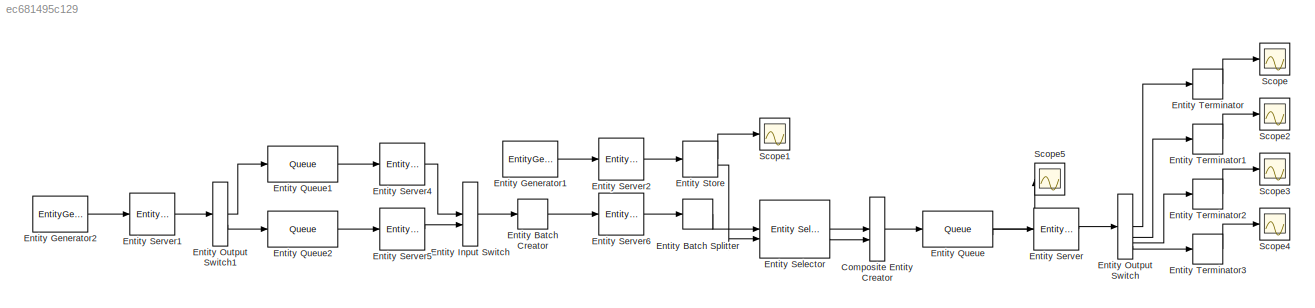
MODEL slx_ec681495c129
KIND model
CONFIG AbsTol = auto
CONFIG EnableMultiTasking = off
CONFIG FixedStep = auto
CONFIG MaxStep = auto
CONFIG MinStep = auto
CONFIG RelTol = 1e-3
CONFIG SampleTimeConstraint = Unconstrained
CONFIG SolverName = VariableStepAuto
CONFIG StartTime = 0.0
CONFIG StopTime = 1000
BLOCK [CompositeEntityCreator] Composite Entity Creator
  EntityTypeName = Combined
  InputPortMap = u0,u1
  InputPortMessageModes = m,m
  OutputPortMap = o0
  OutputPortMessageModes = m
BLOCK [EntityBatchCreator] Entity Batch Creator
  InputPortMap = u0
  InputPortMessageModes = m
  NumberOfEntitiesInBatch = 10
  OutputPortMap = o4
  OutputPortMessageModes = m
BLOCK [EntityBatchSplitter] Entity Batch Splitter
  InputPortMap = u0
  InputPortMessageModes = m
  OutputPortMap = o4
  OutputPortMessageModes = m
BLOCK [EntityGenerator] Entity Generator1
  AttributeName = Velikost
  EntityType = Structured
  EntityTypeName = Kolo
  OutputPortMap = o3
  OutputPortMessageModes = m
  Period = 5
BLOCK [EntityGenerator] Entity Generator2
  AttributeInitialValue = 1|1
  AttributeName = Prodejny|Velikost
  EntityType = Structured
  EntityTypeName = Ram
  IntergenerationTimeAction = persistent rngInit;\nif isempty(rngInit)\n    seed = 12345;\n    rng(seed);\n    rngInit = true;\nend\n\n% Pattern: Uniform distribution\n% m: Minimum, M: Maximum\nm = 0; M = 10;\ndt = m + (M - m) * rand;
  OutputPortMap = o3
  OutputPortMessageModes = m
  TimeSource = MATLAB action
BLOCK [EntityInputSwitch] Entity Input Switch
  InputPortMap = u1,u2
  InputPortMessageModes = m,m
  OutputPortMap = o0
  OutputPortMessageModes = m
BLOCK [EntityOutputSwitch] Entity Output Switch
  InputPortMap = u1
  InputPortMessageModes = m
  NumberOutputPorts = 4
  OutputPortMap = o0,o1,o2,o3
  OutputPortMessageModes = m,m,m,m
  SwitchAttributeName = E1.Prodejny
  SwitchingCriterion = From attribute
BLOCK [EntityOutputSwitch] Entity Output Switch1
  InputPortMap = u1
  InputPortMessageModes = m
  OutputPortMap = o0,o1
  OutputPortMessageModes = m,m
  SwitchAttributeName = Velikost
  SwitchingCriterion = From attribute
BLOCK [Queue] Entity Queue
  InputPortMap = u0
  InputPortMessageModes = m
  NumberEntitiesDeparted = on
  OutputPortMap = o0,o5
  OutputPortMessageModes = n,m
BLOCK [Queue] Entity Queue1
  InputPortMap = u0
  InputPortMessageModes = m
  OutputPortMap = o5
  OutputPortMessageModes = m
BLOCK [Queue] Entity Queue2
  InputPortMap = u0
  InputPortMessageModes = m
  OutputPortMap = o5
  OutputPortMessageModes = m
BLOCK [Reference] Entity Selector  REF=sldelib/Entity Selector
  NameLocation = top
  SourceBlock = sldelib/Entity Selector
  SourceType = desSelector
BLOCK [EntityServer] Entity Server
  Capacity = 1
  InputPortMap = u2
  InputPortMessageModes = m
  OutputPortMap = o9
  OutputPortMessageModes = m
BLOCK [EntityServer] Entity Server1
  Capacity = 1
  EntryAction = entity.Prodejny = randi([1,4]);\nentity.Velikost = randi([1,2]);
  InputPortMap = u2
  InputPortMessageModes = m
  OutputPortMap = o9
  OutputPortMessageModes = m
BLOCK [EntityServer] Entity Server2
  Capacity = 1
  EntryAction = entity.Velikost = randi([1,2]);
  InputPortMap = u2
  InputPortMessageModes = m
  OutputPortMap = o9
  OutputPortMessageModes = m
BLOCK [EntityServer] Entity Server4
  Capacity = 1
  InputPortMap = u2
  InputPortMessageModes = m
  OutputPortMap = o9
  OutputPortMessageModes = m
BLOCK [EntityServer] Entity Server5
  Capacity = 1
  InputPortMap = u2
  InputPortMessageModes = m
  OutputPortMap = o9
  OutputPortMessageModes = m
  ServiceTimeValue = 2
BLOCK [EntityServer] Entity Server6
  Capacity = 1
  InputPortMap = u2
  InputPortMessageModes = m
  OutputPortMap = o9
  OutputPortMessageModes = m
  ServiceTimeValue = 20
BLOCK [EntityStore] Entity Store
  Capacity = 100
  InputPortMap = u0
  InputPortMessageModes = m
  NumberEntitiesInBlock = on
  OutputPortMap = o1,o4
  OutputPortMessageModes = n,m
BLOCK [EntityTerminator] Entity Terminator
  InputPortMap = u0
  InputPortMessageModes = m
  NumberEntitiesArrived = on
  OutputPortMap = o0
BLOCK [EntityTerminator] Entity Terminator1
  InputPortMap = u0
  InputPortMessageModes = m
  NumberEntitiesArrived = on
  OutputPortMap = o0
BLOCK [EntityTerminator] Entity Terminator2
  InputPortMap = u0
  InputPortMessageModes = m
  NumberEntitiesArrived = on
  OutputPortMap = o0
BLOCK [EntityTerminator] Entity Terminator3
  InputPortMap = u0
  InputPortMessageModes = m
  NumberEntitiesArrived = on
  OutputPortMap = o0
BLOCK [Scope] Scope
  Floating = off
  NumInputPorts = 1
  ScopeSpecificationString = Simulink.scopes.TimeScopeBlockCfg('CurrentConfiguration', extmgr.ConfigurationSet(extmgr.Configuration('Core','General UI',true),extmgr.Configuration('Core','Source UI',true),extmgr.Configuration('Sources','WiredSimulink',true),extmgr.Configuration('Visuals','Time Domain',true,'SerializedDisplays',{struct('MinYLimReal','-4.375','MaxYLimReal','49.375','YLabelReal','','MinYLimMag','0.00000','MaxYLim...<+1418ch>
BLOCK [Scope] Scope1
  Floating = off
  NumInputPorts = 1
  ScopeSpecificationString = Simulink.scopes.TimeScopeBlockCfg('CurrentConfiguration', extmgr.ConfigurationSet(extmgr.Configuration('Core','General UI',true),extmgr.Configuration('Core','Source UI',true),extmgr.Configuration('Sources','WiredSimulink',true,'DataLoggingVariableName','ScopeData1'),extmgr.Configuration('Visuals','Time Domain',true,'SerializedDisplays',{struct('MinYLimReal','-2.625','MaxYLimReal','33.625','YLabelR...<+1454ch>
BLOCK [Scope] Scope2
  Floating = off
  NumInputPorts = 1
  ScopeSpecificationString = Simulink.scopes.TimeScopeBlockCfg('CurrentConfiguration', extmgr.ConfigurationSet(extmgr.Configuration('Core','General UI',true),extmgr.Configuration('Core','Source UI',true),extmgr.Configuration('Sources','WiredSimulink',true,'DataLoggingVariableName','ScopeData2'),extmgr.Configuration('Visuals','Time Domain',true,'SerializedDisplays',{struct('MinYLimReal','-3.875','MaxYLimReal','44.875','YLabelR...<+1458ch>
BLOCK [Scope] Scope3
  Floating = off
  NumInputPorts = 1
  ScopeSpecificationString = Simulink.scopes.TimeScopeBlockCfg('CurrentConfiguration', extmgr.ConfigurationSet(extmgr.Configuration('Core','General UI',true),extmgr.Configuration('Core','Source UI',true),extmgr.Configuration('Sources','WiredSimulink',true,'DataLoggingVariableName','ScopeData3'),extmgr.Configuration('Visuals','Time Domain',true,'SerializedDisplays',{struct('MinYLimReal','-4.125','MaxYLimReal','47.125','YLabelR...<+1458ch>
BLOCK [Scope] Scope4
  Floating = off
  NumInputPorts = 1
  ScopeSpecificationString = Simulink.scopes.TimeScopeBlockCfg('CurrentConfiguration', extmgr.ConfigurationSet(extmgr.Configuration('Core','General UI',true),extmgr.Configuration('Core','Source UI',true),extmgr.Configuration('Sources','WiredSimulink',true,'DataLoggingVariableName','ScopeData4'),extmgr.Configuration('Visuals','Time Domain',true,'SerializedDisplays',{struct('MinYLimReal','-4.375','MaxYLimReal','49.375','YLabelR...<+1458ch>
BLOCK [Scope] Scope5
  Floating = off
  NumInputPorts = 1
  ScopeSpecificationString = Simulink.scopes.TimeScopeBlockCfg('CurrentConfiguration', extmgr.ConfigurationSet(extmgr.Configuration('Core','General UI',true),extmgr.Configuration('Core','Source UI',true),extmgr.Configuration('Sources','WiredSimulink',true,'DataLoggingVariableName','ScopeData5'),extmgr.Configuration('Visuals','Time Domain',true,'SerializedDisplays',{struct('MinYLimReal','-20.125','MaxYLimReal','191.125','YLabe...<+1493ch>
LINE Composite Entity Creator:1 -> Entity Queue:1
LINE Entity Batch Creator:1 -> Entity Server6:1
LINE Entity Batch Splitter:1 -> Entity Selector:1
LINE Entity Generator1:1 -> Entity Server2:1
LINE Entity Generator2:1 -> Entity Server1:1
LINE Entity Input Switch:1 -> Entity Batch Creator:1
LINE Entity Output Switch1:1 -> Entity Queue1:1
LINE Entity Output Switch1:2 -> Entity Queue2:1
LINE Entity Output Switch:1 -> Entity Terminator:1
LINE Entity Output Switch:2 -> Entity Terminator1:1
LINE Entity Output Switch:3 -> Entity Terminator2:1
LINE Entity Output Switch:4 -> Entity Terminator3:1
LINE Entity Queue1:1 -> Entity Server4:1
LINE Entity Queue2:1 -> Entity Server5:1
LINE Entity Queue:1 -> Scope5:1
LINE Entity Queue:2 -> Entity Server:1
LINE Entity Selector:1 -> Composite Entity Creator:1
LINE Entity Selector:2 -> Composite Entity Creator:2
LINE Entity Server1:1 -> Entity Output Switch1:1
LINE Entity Server2:1 -> Entity Store:1
LINE Entity Server4:1 -> Entity Input Switch:1
LINE Entity Server5:1 -> Entity Input Switch:2
LINE Entity Server6:1 -> Entity Batch Splitter:1
LINE Entity Server:1 -> Entity Output Switch:1
LINE Entity Store:1 -> Scope1:1
LINE Entity Store:2 -> Entity Selector:2
LINE Entity Terminator1:1 -> Scope2:1
LINE Entity Terminator2:1 -> Scope3:1
LINE Entity Terminator3:1 -> Scope4:1
LINE Entity Terminator:1 -> Scope:1
